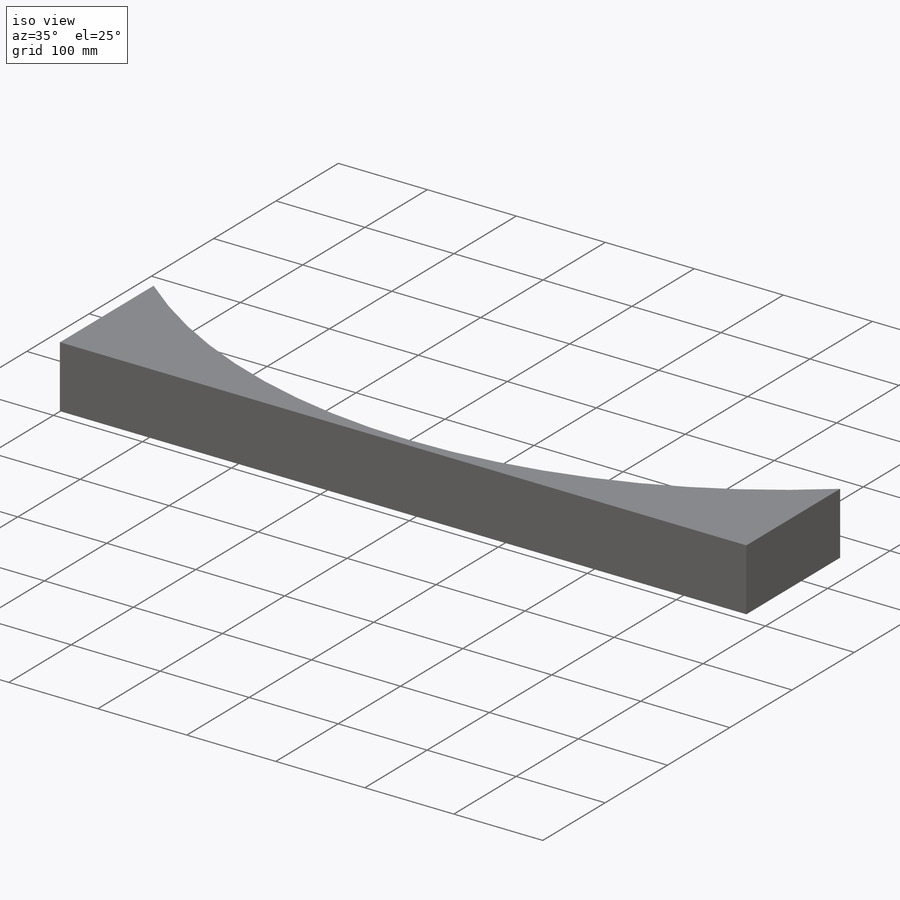
[diagram: iso view]
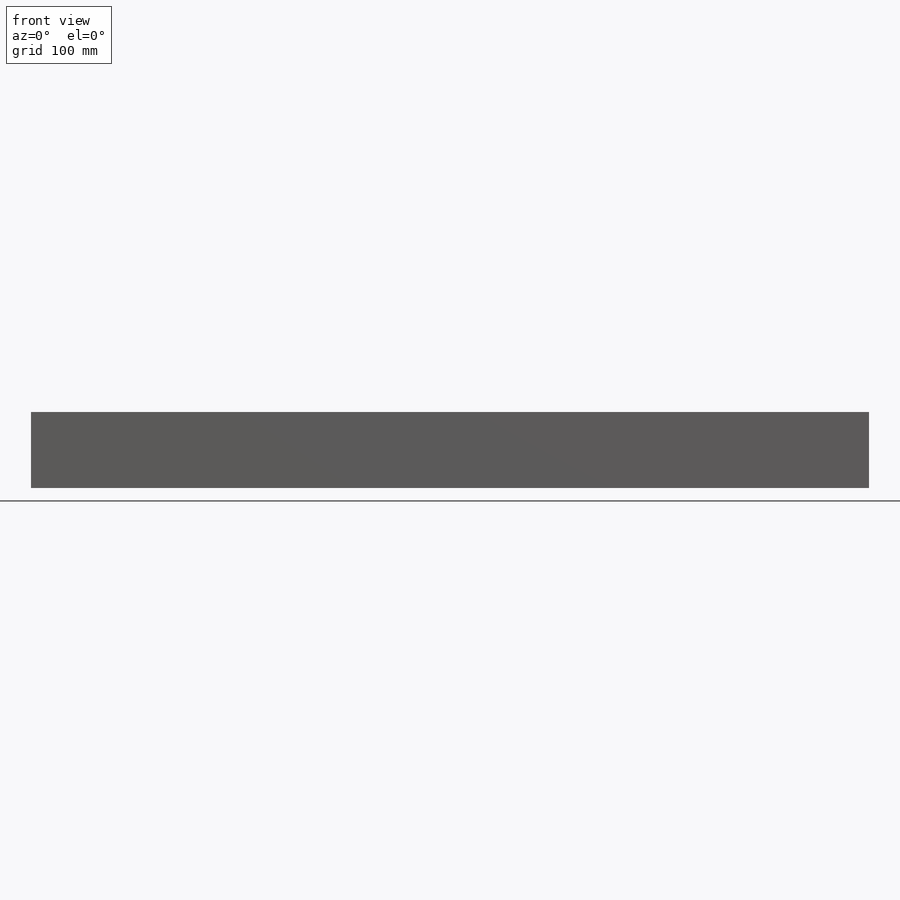
[diagram: front view]
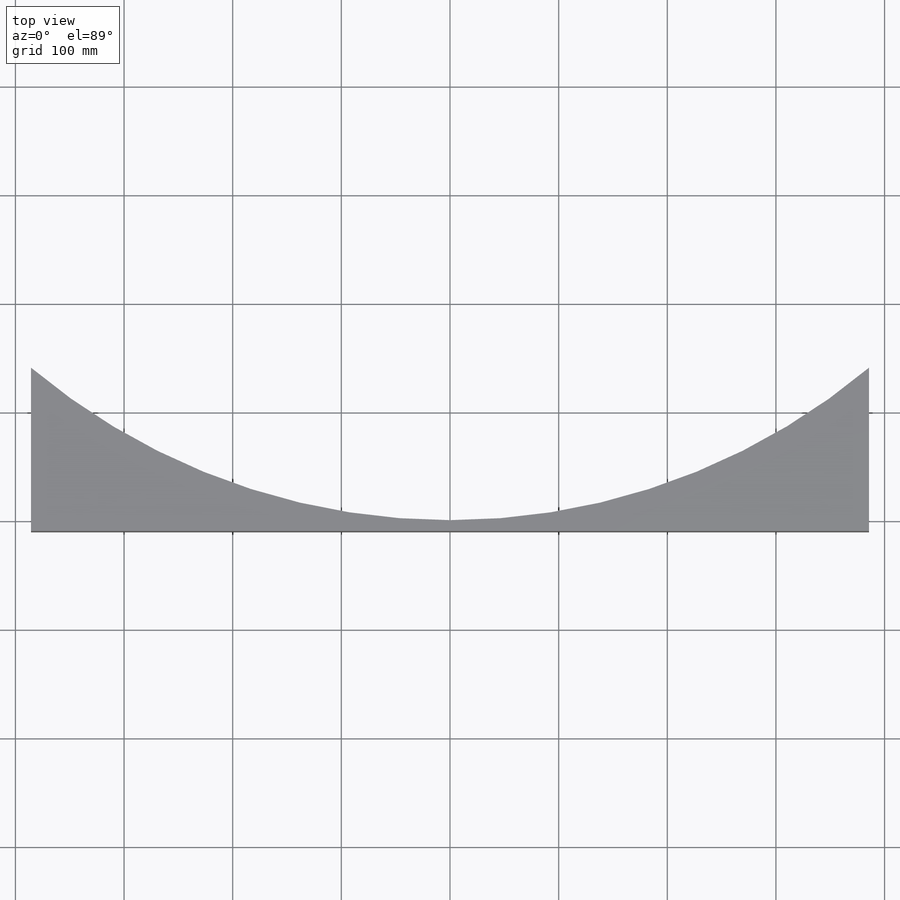
[diagram: top view]
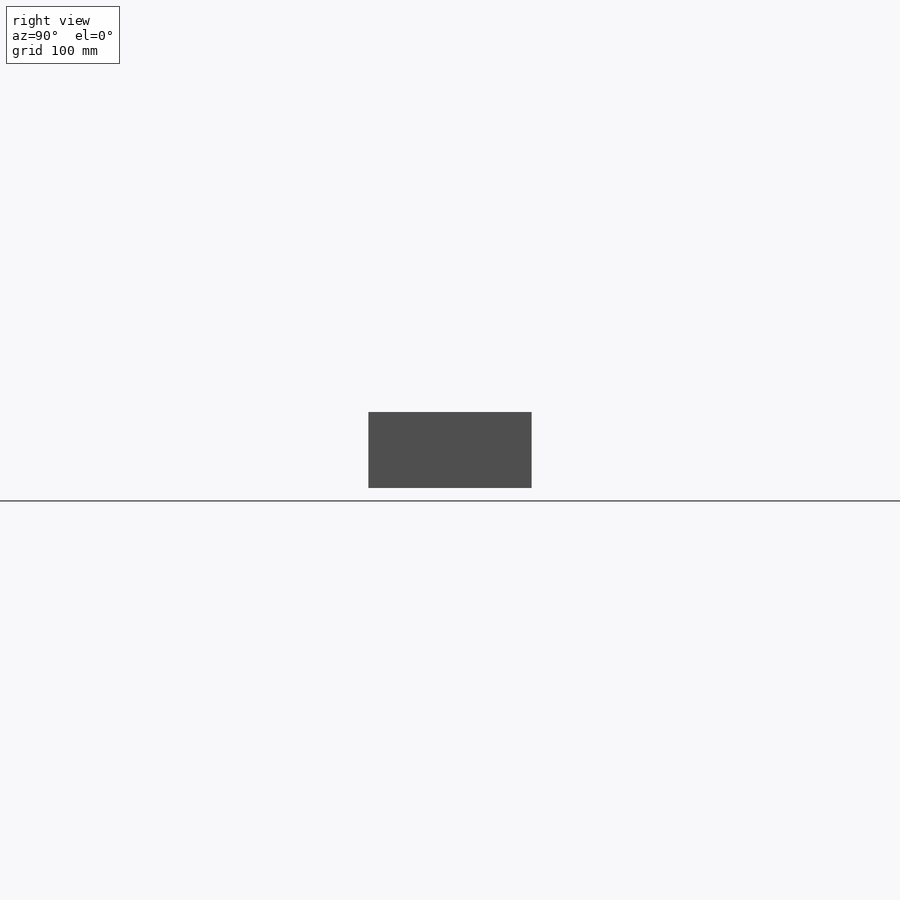
[diagram: right view]
SOLIDWORKS PART (.sldprt)
format: sldprt  version: not decoded by parser v0  size: 189,440 bytes
history: native  units: mm
features: sketch x6, plane x2, material x1, extrude x1 (+13 scaffold rows collapsed)
feature tree (23):
  scaffold x13  (default folders/planes/origin — collapsed)
  material  "Material <not specified>"
  sketch  "Sketch1"  dims[c1.D1=~759.742283mm c2.D1=81.0deg c2.D2=600.0mm c2.D3=10.0mm c2.D4=~779.337658mm c3.D1=790.0mm c3.D4=~447.213595mm c4.D4=~83.62063deg c5.D4=~451.635915mm c6.D4=~82.345774deg c6.D1=~451.635915mm c7.D1=80.0deg c7.D4=~771.345132mm c7.D2=102.64deg]
  extrude  "Boss-Extrude1"  Depth=70mm
  sketch  "Sketch2"  dims[D3=25.4mm D1=750.0mm D2=50.8mm D4=375.0mm]
  plane  "Plane1"  Offset=1100mm
  sketch  "Sketch3"
  sketch  "3DSketch1"
  sketch  "3DSketch2"  dims[D1=1200.0mm]
  plane  "Plane2"
  sketch  "Sketch4"  dims[c1.D4=50.0mm c1.D1=500.0mm c1.D2=71.43mm c1.D3=142.86mm c2.D4=142.86mm]
decode coverage: 5 of 7 modeling features carry decoded parameters
note: ~ marks probable driven/reference dimensions
note: suppression state not decoded; provenance and decode notes live in map.json
